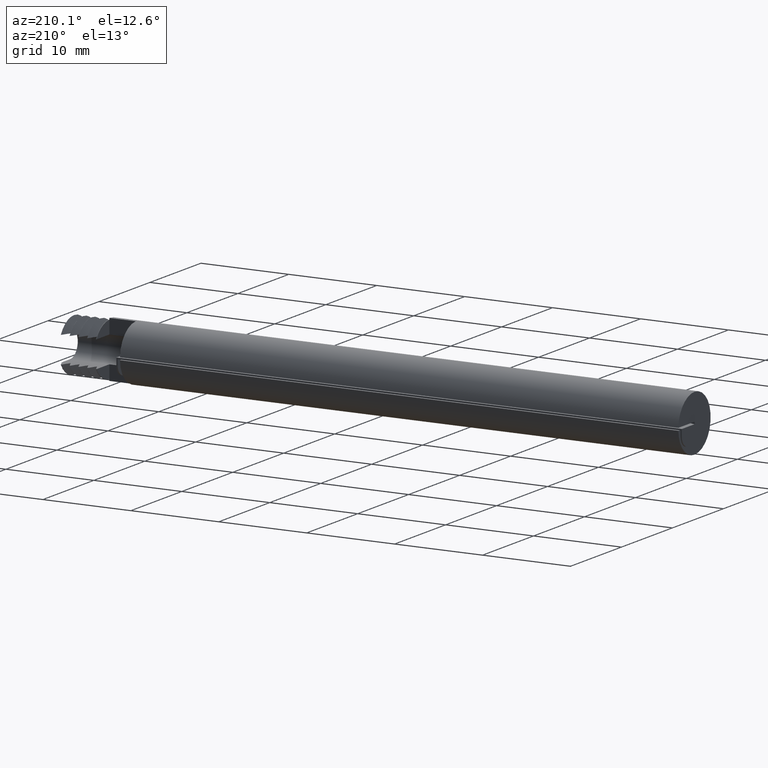
[diagram: clean part render]
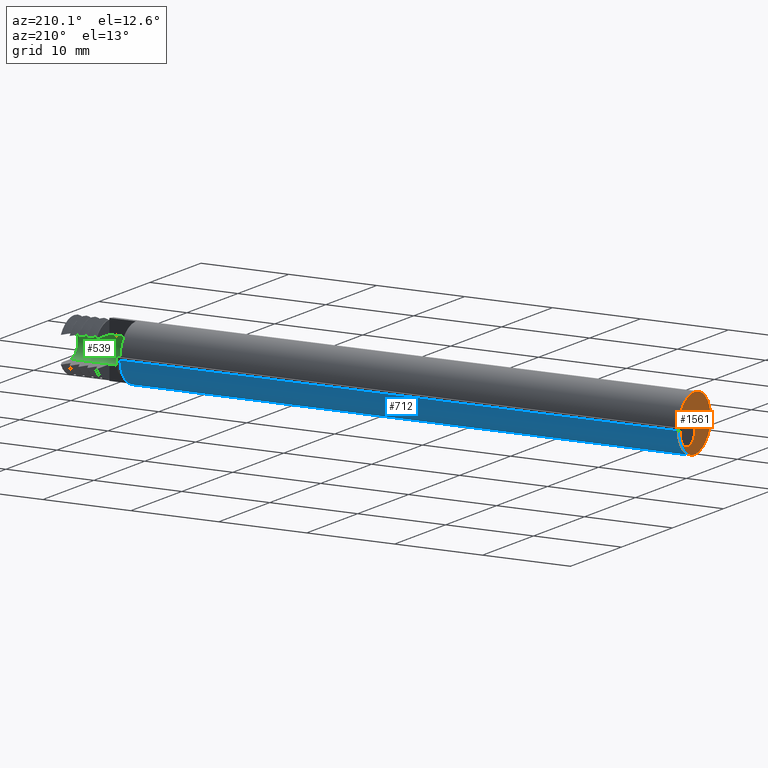
[diagram: same view with three faces highlighted in distinct colors, each labeled with its STEP entity id]
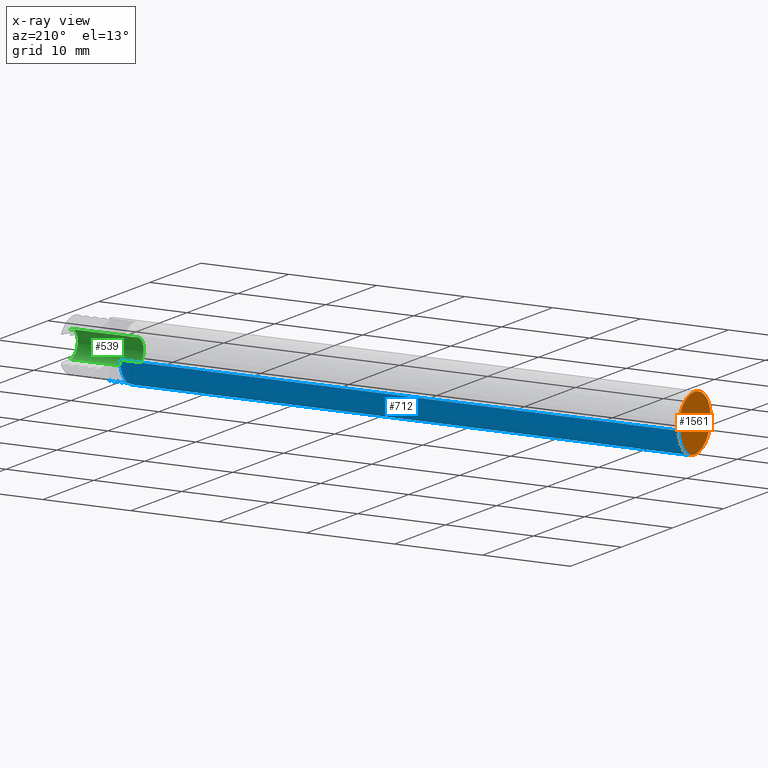
[diagram: x-ray of the same camera — body ghosted, the three highlighted faces saturated]
A machine part, auxiliary view with three faces highlighted in distinct colors.
The next image is the same camera in x-ray (body ghosted, the three faces saturated) — at least one of them is partly hidden behind the body in this view.
Their STEP definitions:

[orange] entity #1561 — the highlighted planar face has unit normal (1, 0, 0).
#20 = DIRECTION ( 'NONE',  ( -1.000000000000000000, -0.0000000000000000000, -0.0000000000000000000 ) ) ;
#29 = CARTESIAN_POINT ( 'NONE',  ( -37.75857759600091200, -2.271543834794374800, 0.1499999999999999900 ) ) ;
#52 = ORIENTED_EDGE ( 'NONE', *, *, #1115, .T. ) ;
#215 = LINE ( 'NONE', #902, #1288 ) ;
#265 = AXIS2_PLACEMENT_3D ( 'NONE', #2176, #20, #1296 ) ;
#289 = DIRECTION ( 'NONE',  ( 1.000000000000000000, 0.0000000000000000000, 0.0000000000000000000 ) ) ;
#312 = LINE ( 'NONE', #2007, #1699 ) ;
#344 = CIRCLE ( 'NONE', #265, 3.174999999999999800 ) ;
#579 = AXIS2_PLACEMENT_3D ( 'NONE', #1022, #1518, #832 ) ;
#632 = EDGE_CURVE ( 'NONE', #1691, #948, #215, .T. ) ;
#683 = CARTESIAN_POINT ( 'NONE',  ( -37.75857759600091200, -5.442998548328843000, 3.174999999999999800 ) ) ;
#705 = VECTOR ( 'NONE', #765, 1000.000000000000000 ) ;
#765 = DIRECTION ( 'NONE',  ( 0.0000000000000000000, 1.000000000000000000, 0.0000000000000000000 ) ) ;
#832 = DIRECTION ( 'NONE',  ( 0.0000000000000000000, 0.0000000000000000000, 1.000000000000000000 ) ) ;
#837 = PLANE ( 'NONE',  #1915 ) ;
#851 = CARTESIAN_POINT ( 'NONE',  ( -37.75857759600091200, -5.442998548328843000, 0.0000000000000000000 ) ) ;
#868 = CARTESIAN_POINT ( 'NONE',  ( -37.75857759600091200, -5.442998548328843000, -3.174999999999999800 ) ) ;
#902 = CARTESIAN_POINT ( 'NONE',  ( -37.75857759600091200, -5.467998548328844200, 0.1499999999999999900 ) ) ;
#948 = VERTEX_POINT ( 'NONE', #1015 ) ;
#959 = EDGE_CURVE ( 'NONE', #1249, #2281, #1420, .T. ) ;
#989 = AXIS2_PLACEMENT_3D ( 'NONE', #851, #2068, #2270 ) ;
#1015 = CARTESIAN_POINT ( 'NONE',  ( -37.75857759600091200, -5.467998548328844200, 0.1499999999999999900 ) ) ;
#1022 = CARTESIAN_POINT ( 'NONE',  ( -37.75857759600091200, -5.442998548328843000, 0.0000000000000000000 ) ) ;
#1115 = EDGE_CURVE ( 'NONE', #2281, #1650, #344, .T. ) ;
#1144 = ORIENTED_EDGE ( 'NONE', *, *, #1731, .T. ) ;
#1181 = FACE_OUTER_BOUND ( 'NONE', #1759, .T. ) ;
#1192 = LINE ( 'NONE', #1470, #705 ) ;
#1249 = VERTEX_POINT ( 'NONE', #1922 ) ;
#1281 = VERTEX_POINT ( 'NONE', #2286 ) ;
#1288 = VECTOR ( 'NONE', #1942, 1000.000000000000000 ) ;
#1296 = DIRECTION ( 'NONE',  ( 0.0000000000000000000, 0.0000000000000000000, 1.000000000000000000 ) ) ;
#1300 = ORIENTED_EDGE ( 'NONE', *, *, #959, .T. ) ;
#1420 = CIRCLE ( 'NONE', #579, 3.174999999999999800 ) ;
#1470 = CARTESIAN_POINT ( 'NONE',  ( -37.75857759600091200, -5.467998548328844200, -0.1499999999999999900 ) ) ;
#1518 = DIRECTION ( 'NONE',  ( -1.000000000000000000, -0.0000000000000000000, -0.0000000000000000000 ) ) ;
#1535 = EDGE_CURVE ( 'NONE', #1650, #1691, #2192, .T. ) ;
#1551 = CARTESIAN_POINT ( 'NONE',  ( -37.75857759600091200, -5.442998548328843000, 0.0000000000000000000 ) ) ;
#1561 = ADVANCED_FACE ( 'NONE', ( #1181 ), #837, .F. ) ;
#1572 = ORIENTED_EDGE ( 'NONE', *, *, #1535, .T. ) ;
#1650 = VERTEX_POINT ( 'NONE', #683 ) ;
#1691 = VERTEX_POINT ( 'NONE', #29 ) ;
#1699 = VECTOR ( 'NONE', #1823, 1000.000000000000000 ) ;
#1700 = EDGE_CURVE ( 'NONE', #948, #1281, #312, .T. ) ;
#1731 = EDGE_CURVE ( 'NONE', #1281, #1249, #1192, .T. ) ;
#1759 = EDGE_LOOP ( 'NONE', ( #1300, #52, #1572, #1838, #1830, #1144 ) ) ;
#1823 = DIRECTION ( 'NONE',  ( 0.0000000000000000000, 0.0000000000000000000, -1.000000000000000000 ) ) ;
#1830 = ORIENTED_EDGE ( 'NONE', *, *, #1700, .T. ) ;
#1838 = ORIENTED_EDGE ( 'NONE', *, *, #632, .T. ) ;
#1915 = AXIS2_PLACEMENT_3D ( 'NONE', #1551, #289, #2284 ) ;
#1922 = CARTESIAN_POINT ( 'NONE',  ( -37.75857759600091200, -2.271543834794374800, -0.1499999999999999900 ) ) ;
#1942 = DIRECTION ( 'NONE',  ( -0.0000000000000000000, -1.000000000000000000, -0.0000000000000000000 ) ) ;
#2007 = CARTESIAN_POINT ( 'NONE',  ( -37.75857759600091200, -5.467998548328844200, 0.1499999999999999900 ) ) ;
#2068 = DIRECTION ( 'NONE',  ( -1.000000000000000000, -0.0000000000000000000, -0.0000000000000000000 ) ) ;
#2176 = CARTESIAN_POINT ( 'NONE',  ( -37.75857759600091200, -5.442998548328843000, 0.0000000000000000000 ) ) ;
#2192 = CIRCLE ( 'NONE', #989, 3.174999999999999800 ) ;
#2270 = DIRECTION ( 'NONE',  ( 0.0000000000000000000, 0.0000000000000000000, 1.000000000000000000 ) ) ;
#2281 = VERTEX_POINT ( 'NONE', #868 ) ;
#2284 = DIRECTION ( 'NONE',  ( 0.0000000000000000000, 0.0000000000000000000, -1.000000000000000000 ) ) ;
#2286 = CARTESIAN_POINT ( 'NONE',  ( -37.75857759600091200, -5.467998548328844200, -0.1499999999999999900 ) ) ;

[blue] entity #712 — the highlighted cylindrical surface (edge-blend (fillet) strip) has radius 3.175 mm, axis along (-1, -0, -0).
#4 = LINE ( 'NONE', #2015, #760 ) ;
#14 = CARTESIAN_POINT ( 'NONE',  ( 28.74142240399909200, -5.442998548328843000, -3.174999999999999800 ) ) ;
#48 = EDGE_CURVE ( 'NONE', #2227, #2013, #766, .T. ) ;
#153 = ORIENTED_EDGE ( 'NONE', *, *, #385, .T. ) ;
#207 = ORIENTED_EDGE ( 'NONE', *, *, #959, .F. ) ;
#275 = DIRECTION ( 'NONE',  ( -1.000000000000000000, -0.0000000000000000000, -0.0000000000000000000 ) ) ;
#276 = LINE ( 'NONE', #428, #472 ) ;
#306 = CARTESIAN_POINT ( 'NONE',  ( 28.74142240399909200, -5.442998548328843000, 0.0000000000000000000 ) ) ;
#383 = VERTEX_POINT ( 'NONE', #941 ) ;
#385 = EDGE_CURVE ( 'NONE', #383, #2227, #1842, .T. ) ;
#428 = CARTESIAN_POINT ( 'NONE',  ( -37.75857759600091200, -2.271543834794374800, -0.1499999999999999900 ) ) ;
#472 = VECTOR ( 'NONE', #1854, 1000.000000000000000 ) ;
#579 = AXIS2_PLACEMENT_3D ( 'NONE', #1022, #1518, #832 ) ;
#633 = CIRCLE ( 'NONE', #1926, 3.174999999999999800 ) ;
#669 = VECTOR ( 'NONE', #2050, 1000.000000000000000 ) ;
#712 = ADVANCED_FACE ( 'NONE', ( #1540 ), #1004, .T. ) ;
#717 = CARTESIAN_POINT ( 'NONE',  ( -37.75857759600091200, -5.442998548328843000, 0.0000000000000000000 ) ) ;
#760 = VECTOR ( 'NONE', #275, 1000.000000000000000 ) ;
#766 = LINE ( 'NONE', #991, #669 ) ;
#778 = DIRECTION ( 'NONE',  ( -1.000000000000000000, -0.0000000000000000000, -0.0000000000000000000 ) ) ;
#790 = AXIS2_PLACEMENT_3D ( 'NONE', #717, #2117, #1770 ) ;
#832 = DIRECTION ( 'NONE',  ( 0.0000000000000000000, 0.0000000000000000000, 1.000000000000000000 ) ) ;
#842 = ORIENTED_EDGE ( 'NONE', *, *, #2295, .F. ) ;
#868 = CARTESIAN_POINT ( 'NONE',  ( -37.75857759600091200, -5.442998548328843000, -3.174999999999999800 ) ) ;
#941 = CARTESIAN_POINT ( 'NONE',  ( 25.74142240399909200, -2.271543834794374800, -0.1499999999999999900 ) ) ;
#959 = EDGE_CURVE ( 'NONE', #1249, #2281, #1420, .T. ) ;
#991 = CARTESIAN_POINT ( 'NONE',  ( -37.75857759600091200, -5.367998548328842800, -3.174114049620775400 ) ) ;
#1004 = CYLINDRICAL_SURFACE ( 'NONE', #790, 3.174999999999999800 ) ;
#1022 = CARTESIAN_POINT ( 'NONE',  ( -37.75857759600091200, -5.442998548328843000, 0.0000000000000000000 ) ) ;
#1024 = CARTESIAN_POINT ( 'NONE',  ( 25.74142240399909200, -5.367998548328842800, -3.174114049620775400 ) ) ;
#1223 = DIRECTION ( 'NONE',  ( 1.000000000000000000, 0.0000000000000000000, 0.0000000000000000000 ) ) ;
#1249 = VERTEX_POINT ( 'NONE', #1922 ) ;
#1420 = CIRCLE ( 'NONE', #579, 3.174999999999999800 ) ;
#1488 = CARTESIAN_POINT ( 'NONE',  ( 25.74142240399909200, -5.442998548328843000, 0.0000000000000000000 ) ) ;
#1518 = DIRECTION ( 'NONE',  ( -1.000000000000000000, -0.0000000000000000000, -0.0000000000000000000 ) ) ;
#1540 = FACE_OUTER_BOUND ( 'NONE', #2107, .T. ) ;
#1550 = DIRECTION ( 'NONE',  ( 0.0000000000000000000, 0.0000000000000000000, -1.000000000000000000 ) ) ;
#1554 = ORIENTED_EDGE ( 'NONE', *, *, #48, .T. ) ;
#1634 = AXIS2_PLACEMENT_3D ( 'NONE', #1488, #778, #2212 ) ;
#1770 = DIRECTION ( 'NONE',  ( 0.0000000000000000000, 0.0000000000000000000, 1.000000000000000000 ) ) ;
#1797 = VERTEX_POINT ( 'NONE', #14 ) ;
#1842 = CIRCLE ( 'NONE', #1634, 3.174999999999999800 ) ;
#1851 = EDGE_CURVE ( 'NONE', #1797, #2281, #4, .T. ) ;
#1854 = DIRECTION ( 'NONE',  ( 1.000000000000000000, 0.0000000000000000000, 0.0000000000000000000 ) ) ;
#1907 = ORIENTED_EDGE ( 'NONE', *, *, #2154, .T. ) ;
#1922 = CARTESIAN_POINT ( 'NONE',  ( -37.75857759600091200, -2.271543834794374800, -0.1499999999999999900 ) ) ;
#1926 = AXIS2_PLACEMENT_3D ( 'NONE', #306, #1223, #1550 ) ;
#2013 = VERTEX_POINT ( 'NONE', #2310 ) ;
#2015 = CARTESIAN_POINT ( 'NONE',  ( -37.75857759600091200, -5.442998548328843000, -3.174999999999999800 ) ) ;
#2050 = DIRECTION ( 'NONE',  ( 1.000000000000000000, 0.0000000000000000000, 0.0000000000000000000 ) ) ;
#2107 = EDGE_LOOP ( 'NONE', ( #842, #2243, #207, #1907, #153, #1554 ) ) ;
#2117 = DIRECTION ( 'NONE',  ( -1.000000000000000000, -0.0000000000000000000, -0.0000000000000000000 ) ) ;
#2154 = EDGE_CURVE ( 'NONE', #1249, #383, #276, .T. ) ;
#2212 = DIRECTION ( 'NONE',  ( 0.0000000000000000000, 0.0000000000000000000, 1.000000000000000000 ) ) ;
#2227 = VERTEX_POINT ( 'NONE', #1024 ) ;
#2243 = ORIENTED_EDGE ( 'NONE', *, *, #1851, .T. ) ;
#2281 = VERTEX_POINT ( 'NONE', #868 ) ;
#2295 = EDGE_CURVE ( 'NONE', #1797, #2013, #633, .T. ) ;
#2310 = CARTESIAN_POINT ( 'NONE',  ( 28.74142240399909200, -5.367998548328842800, -3.174114049620775400 ) ) ;

[green] entity #539 — the highlighted cylindrical surface (edge-blend (fillet) strip) has radius 1.5 mm, axis along (-1, 0, 0).
#10 = CARTESIAN_POINT ( 'NONE',  ( 33.24142240399908100, -5.442998548328843000, 1.500000000000000200 ) ) ;
#24 = CARTESIAN_POINT ( 'NONE',  ( 33.24242240399908600, -5.442998548328843000, -1.500000000000000200 ) ) ;
#57 = DIRECTION ( 'NONE',  ( 0.0000000000000000000, 0.0000000000000000000, 1.000000000000000000 ) ) ;
#86 = CARTESIAN_POINT ( 'NONE',  ( 33.24242240399908600, -5.442998548328843000, 0.0000000000000000000 ) ) ;
#98 = DIRECTION ( 'NONE',  ( 1.000000000000000000, 0.0000000000000000000, 0.0000000000000000000 ) ) ;
#269 = VERTEX_POINT ( 'NONE', #1796 ) ;
#288 = VERTEX_POINT ( 'NONE', #10 ) ;
#291 = DIRECTION ( 'NONE',  ( 0.0000000000000000000, 0.0000000000000000000, -1.000000000000000000 ) ) ;
#320 = LINE ( 'NONE', #24, #1596 ) ;
#421 = VECTOR ( 'NONE', #956, 1000.000000000000000 ) ;
#438 = EDGE_CURVE ( 'NONE', #1360, #1247, #320, .T. ) ;
#459 = AXIS2_PLACEMENT_3D ( 'NONE', #1361, #98, #291 ) ;
#539 = ADVANCED_FACE ( 'NONE', ( #1033 ), #1701, .F. ) ;
#610 = DIRECTION ( 'NONE',  ( -1.000000000000000000, -0.0000000000000000000, -0.0000000000000000000 ) ) ;
#649 = ORIENTED_EDGE ( 'NONE', *, *, #862, .F. ) ;
#656 = ORIENTED_EDGE ( 'NONE', *, *, #438, .T. ) ;
#775 = EDGE_LOOP ( 'NONE', ( #656, #2114, #649, #871 ) ) ;
#862 = EDGE_CURVE ( 'NONE', #288, #269, #1002, .T. ) ;
#871 = ORIENTED_EDGE ( 'NONE', *, *, #1859, .F. ) ;
#956 = DIRECTION ( 'NONE',  ( -1.000000000000000000, 0.0000000000000000000, 0.0000000000000000000 ) ) ;
#999 = CIRCLE ( 'NONE', #1994, 1.500000000000000200 ) ;
#1002 = LINE ( 'NONE', #1464, #421 ) ;
#1029 = DIRECTION ( 'NONE',  ( 0.0000000000000000000, 0.0000000000000000000, 1.000000000000000000 ) ) ;
#1033 = FACE_OUTER_BOUND ( 'NONE', #775, .T. ) ;
#1164 = DIRECTION ( 'NONE',  ( -1.000000000000000000, 0.0000000000000000000, 0.0000000000000000000 ) ) ;
#1247 = VERTEX_POINT ( 'NONE', #1753 ) ;
#1360 = VERTEX_POINT ( 'NONE', #1629 ) ;
#1361 = CARTESIAN_POINT ( 'NONE',  ( 25.74142240399909200, -5.442998548328843000, 0.0000000000000000000 ) ) ;
#1464 = CARTESIAN_POINT ( 'NONE',  ( 33.24242240399908600, -5.442998548328843000, 1.500000000000000200 ) ) ;
#1511 = DIRECTION ( 'NONE',  ( -1.000000000000000000, 0.0000000000000000000, 0.0000000000000000000 ) ) ;
#1596 = VECTOR ( 'NONE', #1164, 1000.000000000000000 ) ;
#1629 = CARTESIAN_POINT ( 'NONE',  ( 33.24142240399908100, -5.442998548328843000, -1.500000000000000200 ) ) ;
#1698 = CARTESIAN_POINT ( 'NONE',  ( 33.24142240399908100, -5.442998548328843000, 0.0000000000000000000 ) ) ;
#1701 = CYLINDRICAL_SURFACE ( 'NONE', #2079, 1.500000000000000200 ) ;
#1753 = CARTESIAN_POINT ( 'NONE',  ( 25.74142240399909200, -5.442998548328843000, -1.500000000000000200 ) ) ;
#1796 = CARTESIAN_POINT ( 'NONE',  ( 25.74142240399909200, -5.442998548328843000, 1.500000000000000200 ) ) ;
#1859 = EDGE_CURVE ( 'NONE', #1360, #288, #999, .T. ) ;
#1901 = EDGE_CURVE ( 'NONE', #269, #1247, #2194, .T. ) ;
#1994 = AXIS2_PLACEMENT_3D ( 'NONE', #1698, #610, #57 ) ;
#2079 = AXIS2_PLACEMENT_3D ( 'NONE', #86, #1511, #1029 ) ;
#2114 = ORIENTED_EDGE ( 'NONE', *, *, #1901, .F. ) ;
#2194 = CIRCLE ( 'NONE', #459, 1.500000000000000200 ) ;